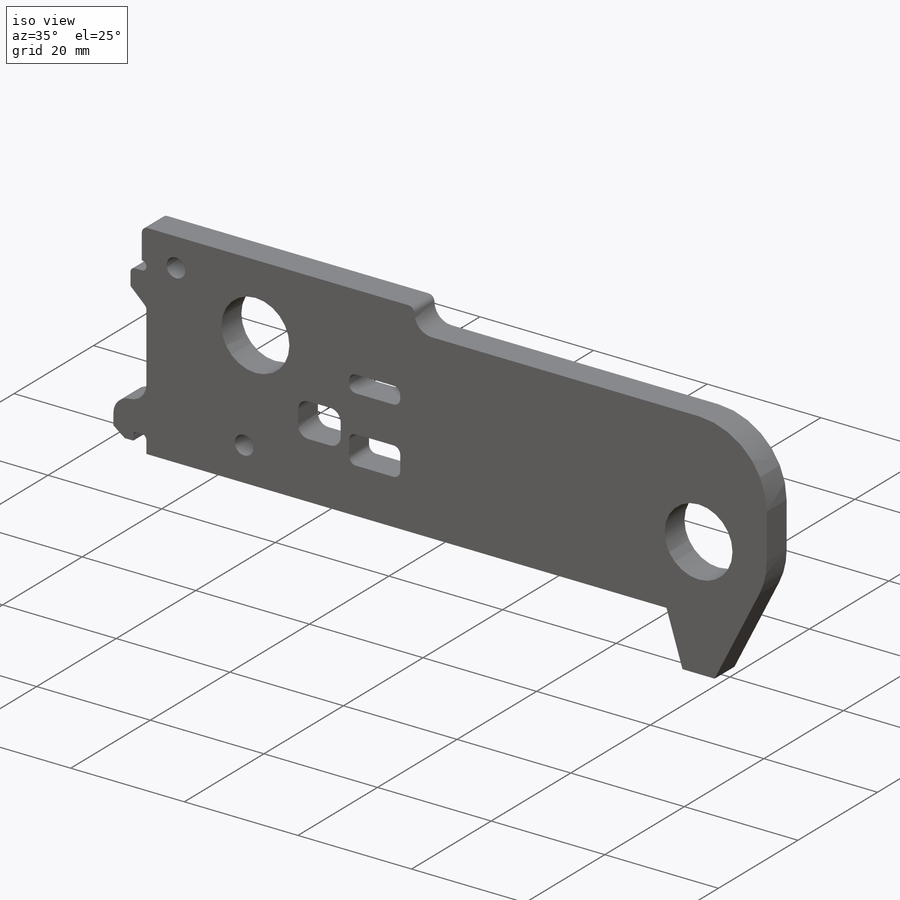
[diagram: iso view]
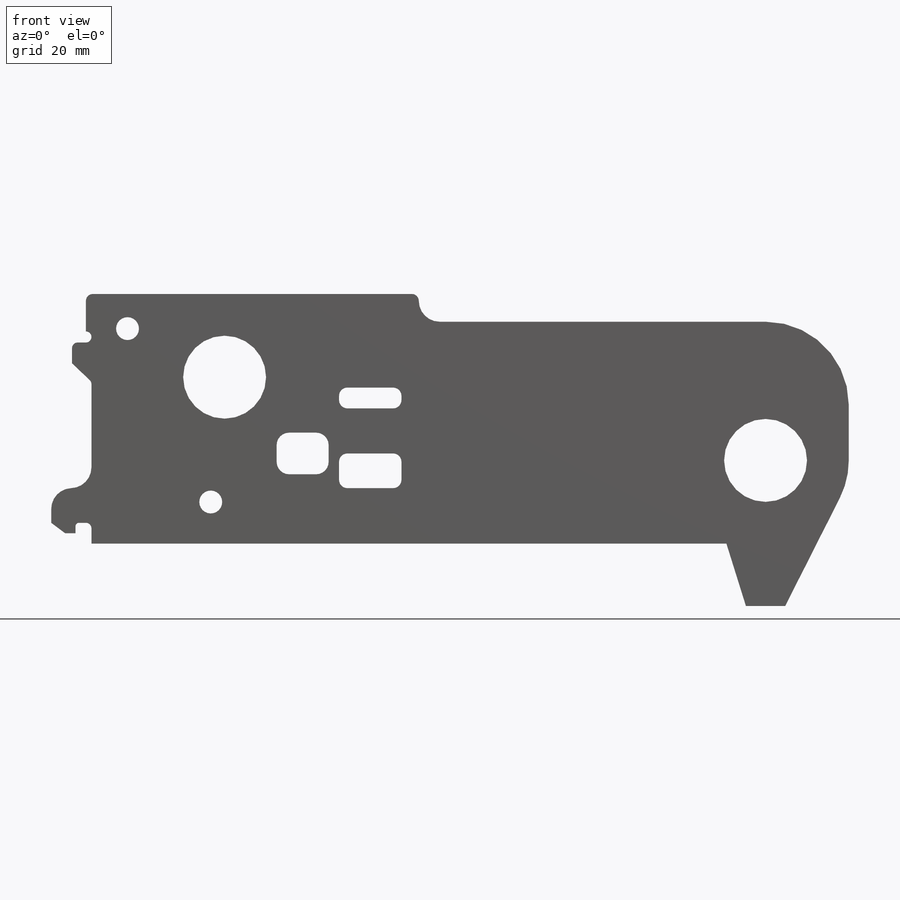
[diagram: front view]
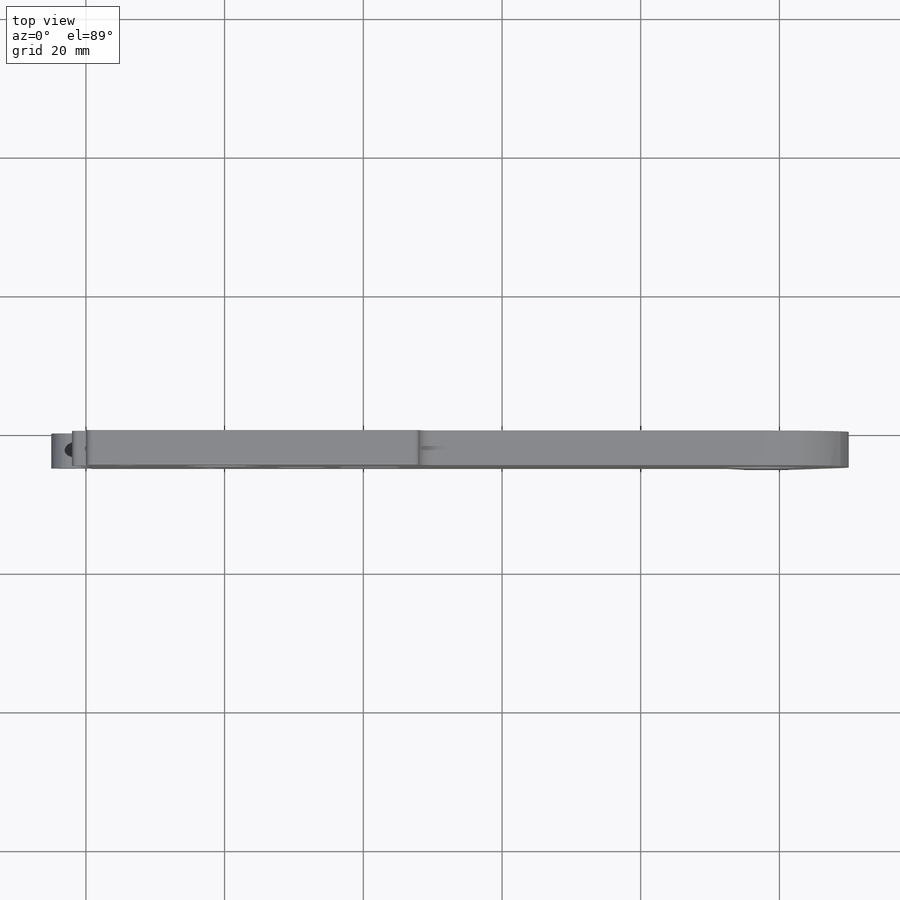
[diagram: top view]
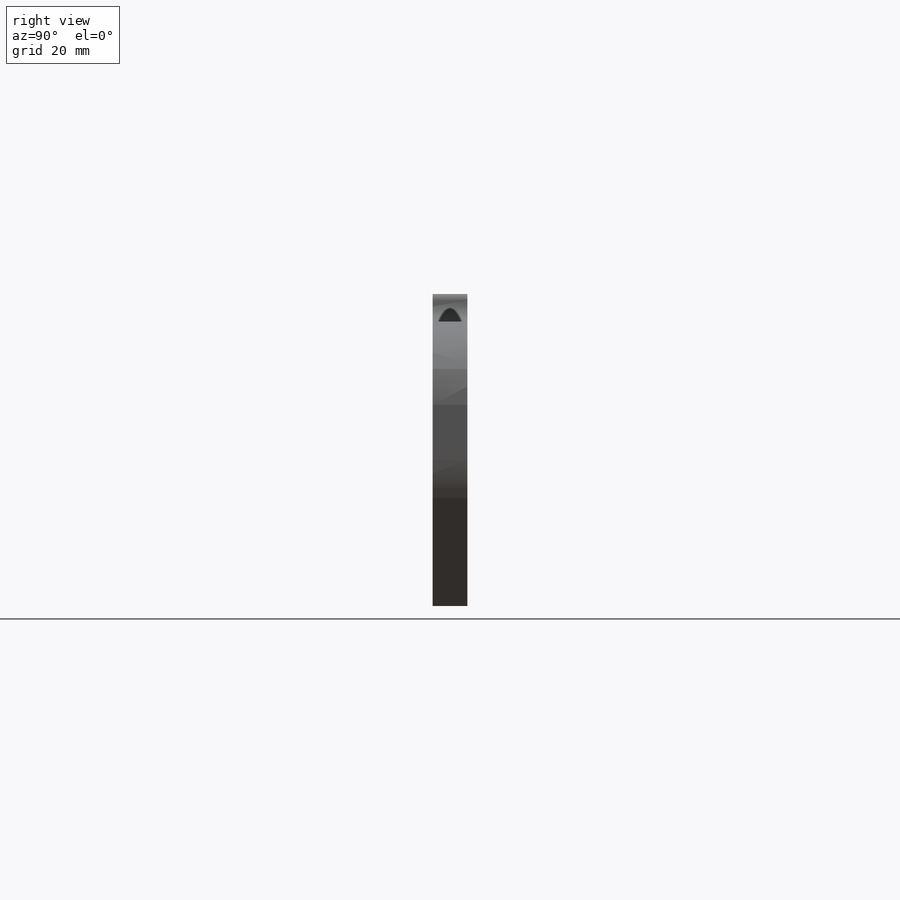
[diagram: right view]
SOLIDWORKS PART (.sldprt)
format: sldprt  version: not decoded by parser v0  size: 389,632 bytes
history: native  units: mm
features: fillet x7, sketch x3, cut_extrude x2, material x1, extrude x1 (+13 scaffold rows collapsed)
feature tree (27):
  scaffold x13  (default folders/planes/origin — collapsed)
  material  "6061-T6 Black anodised"
  sketch  "Sketch1"  dims[c1.D2=~13.169541mm c1.D3=11.96mm c1.D4=12.0mm c1.D8=3.3mm c1.D10=12.0mm c1.D11=3.2mm c1.D12=3.2mm c2.D10=3.2mm c2.D12=3.2mm c2.D23=12.0mm c2.D4=11.96mm c2.D33=0.8mm c2.D34=0.5mm c2.D39=3.0mm c2.D1=9.0mm c2.D2=80.0mm c3.D4=6.0mm c3.D5=20.0mm c3.D6=36.0mm c3.D7=8.0mm c3.D2=80.0mm c4.D7=12.0mm c4.D8=8.0mm c4.D2=80.0mm c4.D9=14.0mm c4.D10=8.0mm c4.D11=10.0mm c4.D12=12.0mm c5.D10=13.0mm c5.D12=12.0mm c5.D11=10.0mm c5.D13=11.0mm c5.D14=5.0mm c5.D15=3.0mm c5.D16=9.0mm c5.D17=16.5mm c6.D13=5.5mm c6.D18=11.0mm c6.D19=9.0mm c6.D20=7.5mm c6.D21=8.0mm c6.D22=6.0mm c6.D4=80.0mm c6.D7=4.0mm c6.D23=~8.913321mm c6.D24=48.0mm c6.D25=12.0mm c6.D26=24.0mm c7.D4=98.0mm c7.D27=2.0mm c7.D28=1.5mm c7.D29=1.5mm c7.D30=33.0mm c7.D31=5.0mm c7.D32=5.0mm c7.D35=7.0mm c7.D36=6.0mm c7.D37=3.0mm c7.D6=36.0mm c7.D38=2.0mm c7.D40=1.5mm c7.D41=4.5mm]
  extrude  "Boss-Extrude1"  Depth=5mm
  fillet  "Fillet1"  Radius=1.2mm
  fillet  "Fillet2"  Radius=3mm
  fillet  "Fillet3"  Radius=1mm
  sketch  "Sketch2"  dims[D1=1.5mm D2=33.0mm D3=6.0mm D4=1.5mm D5=68.0mm D6=5.0mm]
  cut_extrude  "Cut-Extrude1"  [1 undecoded]
  fillet  "Fillet4"  Radius=0.5mm
  fillet  "Fillet5"  Radius=1.8mm
  sketch  "Sketch3"  dims[D3=0.5mm D1=0.5mm D2=12.0mm]
  cut_extrude  "Cut-Extrude2"  [1 undecoded]
  fillet  "Fillet6"  Radius=0.8mm
  fillet  "Fillet7"  Radius=3mm
decode coverage: 11 of 13 modeling features carry decoded parameters
note: ~ marks probable driven/reference dimensions
note: 2 parameter values undecoded
note: suppression state not decoded; provenance and decode notes live in map.json
